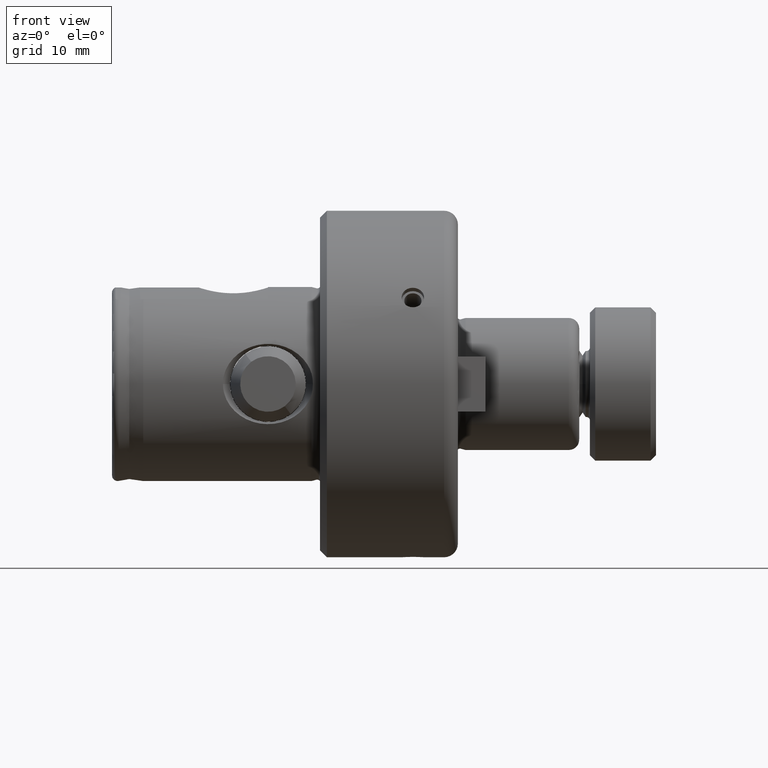
[diagram: clean part render]
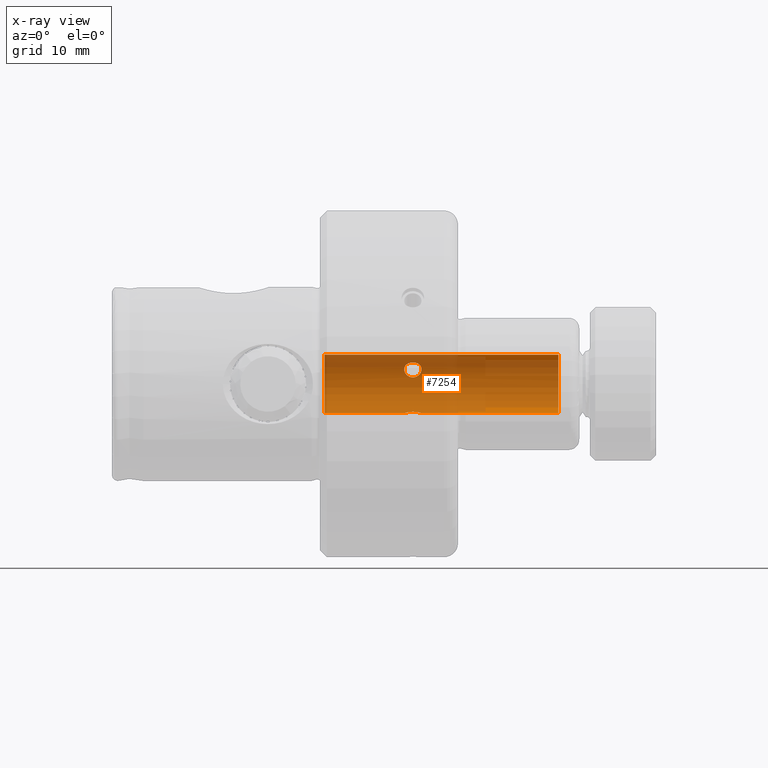
[diagram: x-ray — body ghosted, one internal face saturated and labeled with its STEP entity id]
A machine part, front view, then the same camera in x-ray: the body is ghosted and one INTERNAL B-rep face — a face not visible from any outside direction — is saturated and labeled: STEP entity #7254.
In plain terms, the highlighted cylindrical surface (edge-blend (fillet) strip) has radius 4.2164 mm, axis along (1, 0, 0).
Its self-contained STEP definition (entity closure, byte-faithful):
#44 = CARTESIAN_POINT ( 'NONE',  ( 43.39999999999999900, 2.862355261512674600, 3.095957253724699300 ) ) ;
#229 = CARTESIAN_POINT ( 'NONE',  ( 43.72917405489977200, 2.888102656169020400, 3.072648583032767400 ) ) ;
#237 = DIRECTION ( 'NONE',  ( 1.000000000000000000, -0.0000000000000000000, -0.0000000000000000000 ) ) ;
#259 = CARTESIAN_POINT ( 'NONE',  ( 44.49109231550039600, 3.928592871575244100, 1.538696138027859900 ) ) ;
#339 = EDGE_CURVE ( 'NONE', #2829, #1419, #1173, .T. ) ;
#418 = DIRECTION ( 'NONE',  ( 1.000000000000000000, -0.0000000000000000000, -0.0000000000000000000 ) ) ;
#516 = FACE_OUTER_BOUND ( 'NONE', #584, .T. ) ;
#584 = EDGE_LOOP ( 'NONE', ( #1455, #4172, #8012, #2723, #4405, #7431 ) ) ;
#644 = DIRECTION ( 'NONE',  ( 1.000000000000000000, 0.0000000000000000000, 0.0000000000000000000 ) ) ;
#745 = CARTESIAN_POINT ( 'NONE',  ( 42.76971575321684300, 4.073296670938252500, 1.091108971545993000 ) ) ;
#790 = DIRECTION ( 'NONE',  ( 0.0000000000000000000, 0.0000000000000000000, -1.000000000000000000 ) ) ;
#839 = CARTESIAN_POINT ( 'NONE',  ( 44.49162633400578700, 3.297674403967062200, 2.631776809344294600 ) ) ;
#869 = CARTESIAN_POINT ( 'NONE',  ( 43.39999999999999900, 4.112355261512648900, 0.9308937442636022700 ) ) ;
#934 = CARTESIAN_POINT ( 'NONE',  ( 43.72886029606933500, 4.105040352877960400, 0.9648348765437252400 ) ) ;
#949 = VECTOR ( 'NONE', #418, 1000.000000000000000 ) ;
#990 = ORIENTED_EDGE ( 'NONE', *, *, #3258, .T. ) ;
#1099 = CARTESIAN_POINT ( 'NONE',  ( 44.61694822795036000, 0.3288920212534458500, -4.206289224579965200 ) ) ;
#1168 = CARTESIAN_POINT ( 'NONE',  ( 43.80372639049515000, 1.185863523963704300, -4.046335873495602100 ) ) ;
#1173 = B_SPLINE_CURVE_WITH_KNOTS ( 'NONE', 3,
 ( #5630, #4917, #8466, #5576, #2686, #7065, #5663, #1231, #9258, #9226, #4166, #2562, #1168, #3332, #4814, #5543, #6276, #4790, #7097, #1099, #3402, #1854 ),
 .UNSPECIFIED., .F., .F.,
 ( 4, 2, 2, 2, 2, 2, 2, 2, 2, 2, 4 ),
 ( 3.856097448455750000E-019, 0.0004912850769079927200, 0.0009825701538159850100, 0.001473855230723977300, 0.001965140307631969600, 0.002210782846085976100, 0.002456425384539982700, 0.002947710461447976700, 0.003193352999901973700, 0.003438995538355970700, 0.003930280615263964300 ),
 .UNSPECIFIED. ) ;
#1231 = CARTESIAN_POINT ( 'NONE',  ( 43.07019996288869400, 1.216634464058951000, -4.037579560406466200 ) ) ;
#1412 = LINE ( 'NONE', #4837, #949 ) ;
#1419 = VERTEX_POINT ( 'NONE', #3114 ) ;
#1455 = ORIENTED_EDGE ( 'NONE', *, *, #5732, .F. ) ;
#1499 = DIRECTION ( 'NONE',  ( 1.000000000000000000, -0.0000000000000000000, -0.0000000000000000000 ) ) ;
#1583 = CARTESIAN_POINT ( 'NONE',  ( 44.60962537431281300, 3.804078238634219600, 1.820301526742666500 ) ) ;
#1613 = CARTESIAN_POINT ( 'NONE',  ( 44.64992873724937500, 3.569155849670300200, 2.250798474928159500 ) ) ;
#1624 = CARTESIAN_POINT ( 'NONE',  ( 43.07440839093728600, 2.893229316627574200, 3.067170618279420900 ) ) ;
#1854 = CARTESIAN_POINT ( 'NONE',  ( 44.64999999999999900, -9.536836094917174800E-021, -4.216399999999985900 ) ) ;
#2134 = CARTESIAN_POINT ( 'NONE',  ( 43.39999999999999900, 4.112355261512648900, 0.9308937442636022700 ) ) ;
#2200 = VERTEX_POINT ( 'NONE', #5101 ) ;
#2235 = CARTESIAN_POINT ( 'NONE',  ( 42.30930111694469500, 3.928908011309789000, 1.537937606201621000 ) ) ;
#2261 = VECTOR ( 'NONE', #237, 1000.000000000000000 ) ;
#2332 = CARTESIAN_POINT ( 'NONE',  ( 42.76861313387509300, 2.982035071721536000, 2.981569227592288900 ) ) ;
#2337 = VERTEX_POINT ( 'NONE', #9148 ) ;
#2361 = CARTESIAN_POINT ( 'NONE',  ( 44.02803440712902000, 4.070956077566904700, 1.098873487008920300 ) ) ;
#2404 = CARTESIAN_POINT ( 'NONE',  ( 42.63046760190871300, 3.049994534240470800, 2.913640939156330000 ) ) ;
#2562 = CARTESIAN_POINT ( 'NONE',  ( 43.72556818024558800, 1.209636774022496300, -4.039194242346272100 ) ) ;
#2686 = CARTESIAN_POINT ( 'NONE',  ( 42.40178944724539200, 0.7696416916616828400, -4.147217257795738900 ) ) ;
#2723 = ORIENTED_EDGE ( 'NONE', *, *, #339, .T. ) ;
#2829 = VERTEX_POINT ( 'NONE', #5852 ) ;
#2862 = EDGE_CURVE ( 'NONE', #4463, #9019, #3225, .T. ) ;
#2865 = EDGE_CURVE ( 'NONE', #2337, #2829, #5960, .T. ) ;
#2880 = CARTESIAN_POINT ( 'NONE',  ( 42.15001257992278700, 3.733938262369345100, 1.965421758326884000 ) ) ;
#2969 = CARTESIAN_POINT ( 'NONE',  ( 42.63174985354148600, 4.048636361980916500, 1.183418111712891000 ) ) ;
#3035 = CARTESIAN_POINT ( 'NONE',  ( 42.14998742735947700, 3.569176169487125800, 2.250812987890321400 ) ) ;
#3043 = DIRECTION ( 'NONE',  ( 1.000000000000000000, -0.0000000000000000000, -0.0000000000000000000 ) ) ;
#3088 = CARTESIAN_POINT ( 'NONE',  ( 44.39865127975942700, 3.207155208333468000, 2.739694962822337500 ) ) ;
#3114 = CARTESIAN_POINT ( 'NONE',  ( 44.64999999999999900, -9.536836094917174800E-021, -4.216399999999985900 ) ) ;
#3126 = CARTESIAN_POINT ( 'NONE',  ( 44.65003545522082400, 3.692279918553069300, 2.037604607509350400 ) ) ;
#3139 = CARTESIAN_POINT ( 'NONE',  ( 42.18314993746822900, 3.478121686372856600, 2.388238197509096900 ) ) ;
#3192 = CARTESIAN_POINT ( 'NONE',  ( 44.39892272912034300, 3.976203768686574800, 1.407747321755865800 ) ) ;
#3225 = B_SPLINE_CURVE_WITH_KNOTS ( 'NONE', 3,
 ( #2134, #8102, #7320, #745, #2969, #6662, #2235, #8902, #2880, #3035, #3139, #6762, #8970, #2404, #2332, #4520, #1624, #4625, #5318, #7504 ),
 .UNSPECIFIED., .F., .F.,
 ( 4, 2, 2, 2, 2, 2, 2, 2, 2, 4 ),
 ( 0.003930217475493770800, 0.004421359744845528700, 0.004912502014197285700, 0.005403644283549043600, 0.005894786552900800600, 0.006385928822252560200, 0.006877071091604319000, 0.007368213360956077700, 0.007613784495631947100, 0.007859355630307816500 ),
 .UNSPECIFIED. ) ;
#3258 = EDGE_CURVE ( 'NONE', #9019, #4463, #5669, .T. ) ;
#3332 = CARTESIAN_POINT ( 'NONE',  ( 44.03162175530192700, 1.091156790579952400, -4.073292915172074500 ) ) ;
#3402 = CARTESIAN_POINT ( 'NONE',  ( 44.64999999999999100, 0.1637604662075081400, -4.216399999999984200 ) ) ;
#3512 = VERTEX_POINT ( 'NONE', #8597 ) ;
#3633 = EDGE_CURVE ( 'NONE', #2337, #7164, #3711, .T. ) ;
#3711 = CIRCLE ( 'NONE', #6308, 4.216399999999985900 ) ;
#3748 = CIRCLE ( 'NONE', #5439, 4.216399999999990400 ) ;
#3913 = CARTESIAN_POINT ( 'NONE',  ( 43.56375161187260400, 4.112355261512648000, 0.9308937442636007200 ) ) ;
#4166 = CARTESIAN_POINT ( 'NONE',  ( 43.56485317365684300, 1.241788708352288100, -4.029425772523870500 ) ) ;
#4172 = ORIENTED_EDGE ( 'NONE', *, *, #3633, .F. ) ;
#4405 = ORIENTED_EDGE ( 'NONE', *, *, #5846, .T. ) ;
#4463 = VERTEX_POINT ( 'NONE', #4610 ) ;
#4520 = CARTESIAN_POINT ( 'NONE',  ( 42.99462135705642400, 2.911755434182922800, 3.049717047281889700 ) ) ;
#4610 = CARTESIAN_POINT ( 'NONE',  ( 43.39999999999999900, 4.112355261512648900, 0.9308937442636022700 ) ) ;
#4625 = CARTESIAN_POINT ( 'NONE',  ( 43.23519746269529000, 2.868683694999949900, 3.090140019201602400 ) ) ;
#4782 = CYLINDRICAL_SURFACE ( 'NONE', #8686, 4.216399999999985900 ) ;
#4790 = CARTESIAN_POINT ( 'NONE',  ( 44.48374701821958200, 0.6281733788806367300, -4.169906093270422600 ) ) ;
#4814 = CARTESIAN_POINT ( 'NONE',  ( 44.16880279588826900, 0.9990382242517261700, -4.098034872769076700 ) ) ;
#4837 = CARTESIAN_POINT ( 'NONE',  ( 64.40000000000000600, 5.163600763924882600E-016, 4.216399999999985900 ) ) ;
#4917 = CARTESIAN_POINT ( 'NONE',  ( 42.15000000000000600, 0.1661876593331810500, -4.216399999999985000 ) ) ;
#4995 = LINE ( 'NONE', #6022, #5696 ) ;
#5101 = CARTESIAN_POINT ( 'NONE',  ( 64.40000000000000600, 5.163600763924888500E-016, 4.216399999999990400 ) ) ;
#5318 = CARTESIAN_POINT ( 'NONE',  ( 43.31692527384717600, 2.862355261512679900, 3.095957253724702900 ) ) ;
#5381 = CARTESIAN_POINT ( 'NONE',  ( 44.61663853937592000, 3.477769634344618100, 2.388728536107120000 ) ) ;
#5411 = CARTESIAN_POINT ( 'NONE',  ( 44.64178437080347800, 3.731826345809445800, 1.964174386004114100 ) ) ;
#5439 = AXIS2_PLACEMENT_3D ( 'NONE', #8276, #1499, #790 ) ;
#5543 = CARTESIAN_POINT ( 'NONE',  ( 44.34184974333800300, 0.8258800391670726400, -4.135146391470582800 ) ) ;
#5576 = CARTESIAN_POINT ( 'NONE',  ( 42.30892920062201100, 0.6315725540992877000, -4.171606894059945800 ) ) ;
#5630 = CARTESIAN_POINT ( 'NONE',  ( 42.15000000000000600, -3.971192205086841100E-016, -4.216399999999985900 ) ) ;
#5663 = CARTESIAN_POINT ( 'NONE',  ( 42.76977057171962600, 1.091686013166795600, -4.073140038643905400 ) ) ;
#5669 = B_SPLINE_CURVE_WITH_KNOTS ( 'NONE', 3,
 ( #44, #5940, #229, #9029, #9128, #3088, #839, #5381, #1613, #3126, #5411, #1583, #9093, #259, #3192, #6783, #6004, #2361, #6138, #934, #3913, #869 ),
 .UNSPECIFIED., .F., .F.,
 ( 4, 2, 2, 2, 2, 2, 2, 2, 2, 2, 4 ),
 ( 0.0000000000000000000, 0.0004912771844367249300, 0.0009825543688734498600, 0.001473831553310174900, 0.001965108737746899700, 0.002210747329965262000, 0.002456385922183625200, 0.002947663106620350700, 0.003193301698838705600, 0.003438940291057061000, 0.003930217475493770800 ),
 .UNSPECIFIED. ) ;
#5696 = VECTOR ( 'NONE', #5950, 1000.000000000000000 ) ;
#5732 = EDGE_CURVE ( 'NONE', #7164, #2200, #1412, .T. ) ;
#5846 = EDGE_CURVE ( 'NONE', #1419, #3512, #4995, .T. ) ;
#5852 = CARTESIAN_POINT ( 'NONE',  ( 42.15000000000000600, -3.971192205086841100E-016, -4.216399999999985900 ) ) ;
#5861 = CARTESIAN_POINT ( 'NONE',  ( 30.67409950742404200, 0.0000000000000000000, 4.216399999999985900 ) ) ;
#5900 = EDGE_LOOP ( 'NONE', ( #990, #6141 ) ) ;
#5940 = CARTESIAN_POINT ( 'NONE',  ( 43.56619509298633400, 2.862355261512679500, 3.095957253724701500 ) ) ;
#5950 = DIRECTION ( 'NONE',  ( 1.000000000000000000, -0.0000000000000000000, -0.0000000000000000000 ) ) ;
#5960 = LINE ( 'NONE', #8864, #2261 ) ;
#6004 = CARTESIAN_POINT ( 'NONE',  ( 44.16309107329675500, 4.045639867075674800, 1.188698612709712800 ) ) ;
#6022 = CARTESIAN_POINT ( 'NONE',  ( 64.40000000000000600, 0.0000000000000000000, -4.216399999999985900 ) ) ;
#6024 = DIRECTION ( 'NONE',  ( 0.0000000000000000000, 0.0000000000000000000, -1.000000000000000000 ) ) ;
#6138 = CARTESIAN_POINT ( 'NONE',  ( 43.95484216962292100, 4.081245917213871100, 1.059490038963516000 ) ) ;
#6141 = ORIENTED_EDGE ( 'NONE', *, *, #2862, .T. ) ;
#6276 = CARTESIAN_POINT ( 'NONE',  ( 44.39325033496606200, 0.7632582561125478300, -4.147307012400235100 ) ) ;
#6308 = AXIS2_PLACEMENT_3D ( 'NONE', #7337, #644, #8058 ) ;
#6662 = CARTESIAN_POINT ( 'NONE',  ( 42.40100972217720700, 3.976164396398380200, 1.407853512087839900 ) ) ;
#6762 = CARTESIAN_POINT ( 'NONE',  ( 42.30837705554680600, 3.297622272189870300, 2.631862364033497500 ) ) ;
#6783 = CARTESIAN_POINT ( 'NONE',  ( 44.22571505793070700, 4.030578409247245200, 1.239333143233453100 ) ) ;
#7065 = CARTESIAN_POINT ( 'NONE',  ( 42.63110242314004200, 0.9987838392131629400, -4.098071517119883800 ) ) ;
#7097 = CARTESIAN_POINT ( 'NONE',  ( 44.52302599985549100, 0.5549512063574206800, -4.180407950090253300 ) ) ;
#7164 = VERTEX_POINT ( 'NONE', #5861 ) ;
#7254 = ADVANCED_FACE ( 'NONE', ( #516, #8725 ), #4782, .F. ) ;
#7320 = CARTESIAN_POINT ( 'NONE',  ( 43.07100091618935500, 4.105031416140256800, 0.9648738931934680600 ) ) ;
#7337 = CARTESIAN_POINT ( 'NONE',  ( 30.67409950742404200, 0.0000000000000000000, 0.0000000000000000000 ) ) ;
#7431 = ORIENTED_EDGE ( 'NONE', *, *, #8172, .T. ) ;
#7478 = CARTESIAN_POINT ( 'NONE',  ( 64.40000000000000600, 0.0000000000000000000, 0.0000000000000000000 ) ) ;
#7504 = CARTESIAN_POINT ( 'NONE',  ( 43.39999999999999900, 2.862355261512674600, 3.095957253724699300 ) ) ;
#7657 = CARTESIAN_POINT ( 'NONE',  ( 43.39999999999999900, 2.862355261512674600, 3.095957253724699300 ) ) ;
#8012 = ORIENTED_EDGE ( 'NONE', *, *, #2865, .T. ) ;
#8058 = DIRECTION ( 'NONE',  ( 0.0000000000000000000, 0.0000000000000000000, 1.000000000000000000 ) ) ;
#8102 = CARTESIAN_POINT ( 'NONE',  ( 43.23629335777653900, 4.112355261512650600, 0.9308937442636007200 ) ) ;
#8172 = EDGE_CURVE ( 'NONE', #3512, #2200, #3748, .T. ) ;
#8276 = CARTESIAN_POINT ( 'NONE',  ( 64.40000000000000600, 0.0000000000000000000, 0.0000000000000000000 ) ) ;
#8466 = CARTESIAN_POINT ( 'NONE',  ( 42.18305647280933400, 0.3291926973302860500, -4.206283411479114800 ) ) ;
#8597 = CARTESIAN_POINT ( 'NONE',  ( 64.40000000000000600, 0.0000000000000000000, -4.216399999999990400 ) ) ;
#8686 = AXIS2_PLACEMENT_3D ( 'NONE', #7478, #3043, #6024 ) ;
#8725 = FACE_BOUND ( 'NONE', #5900, .T. ) ;
#8864 = CARTESIAN_POINT ( 'NONE',  ( 64.40000000000000600, 0.0000000000000000000, -4.216399999999985900 ) ) ;
#8902 = CARTESIAN_POINT ( 'NONE',  ( 42.18247203610521000, 3.806735809511934600, 1.819431976877102100 ) ) ;
#8970 = CARTESIAN_POINT ( 'NONE',  ( 42.40133894836504400, 3.207166328761540200, 2.739681426896702900 ) ) ;
#9019 = VERTEX_POINT ( 'NONE', #7657 ) ;
#9029 = CARTESIAN_POINT ( 'NONE',  ( 44.03144953939362000, 2.982010836062094100, 2.981596491980775800 ) ) ;
#9093 = CARTESIAN_POINT ( 'NONE',  ( 44.58584474677091000, 3.837223655015394200, 1.749169311511503500 ) ) ;
#9128 = CARTESIAN_POINT ( 'NONE',  ( 44.16948430073512100, 3.049965960133464500, 2.913671337279092100 ) ) ;
#9148 = CARTESIAN_POINT ( 'NONE',  ( 30.67409950742404200, 6.408821629297921100E-016, -4.216399999999985900 ) ) ;
#9226 = CARTESIAN_POINT ( 'NONE',  ( 43.48148409233923000, 1.250037258055741100, -4.026839432483607000 ) ) ;
#9258 = CARTESIAN_POINT ( 'NONE',  ( 43.23532312486821600, 1.249925094605404400, -4.026874249837674400 ) ) ;